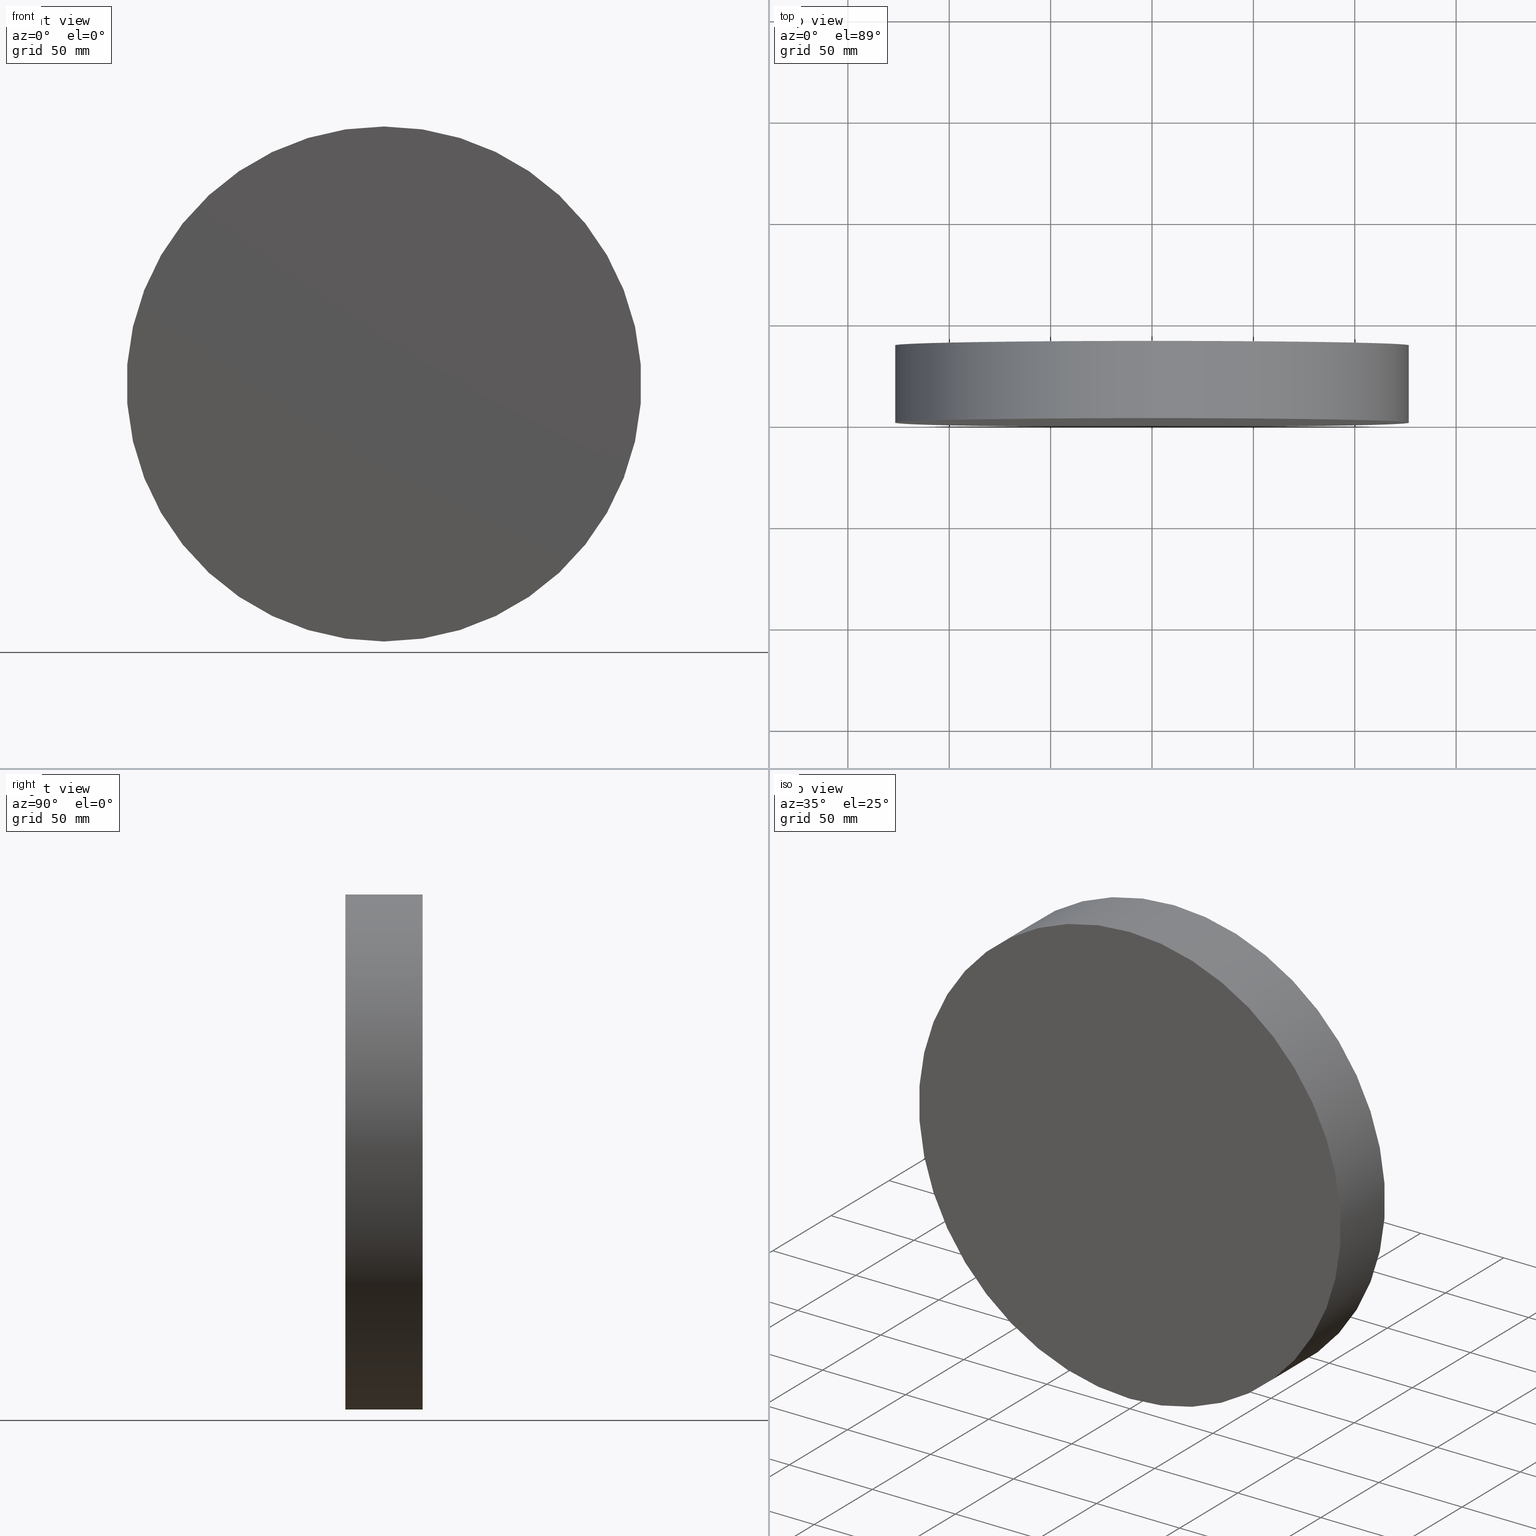
[diagram: canonical four-view strip — front | top / right | iso, engineering-drawing reading convention]
A machine part, canonical four-view strip (front | top / right | iso — engineering-drawing reading convention). The complete STEP part file that produces these views, byte-faithful:
ISO-10303-21;
HEADER;
FILE_DESCRIPTION (( 'STEP AP214' ),
    '1' );
FILE_NAME ('192506.STEP',
    '2019-07-19T05:34:12',
    ( 'user' ),
    ( '΢���й�' ),
    'SwSTEP 2.0',
    'SolidWorks 2016',
    '' );
FILE_SCHEMA (( 'AUTOMOTIVE_DESIGN' ));
ENDSEC;

DATA;
#1 = FACE_OUTER_BOUND ( 'NONE', #119, .T. ) ;
#2 = ADVANCED_FACE ( 'NONE', ( #1 ), #73, .F. ) ;
#3 = EDGE_CURVE ( 'NONE', #114, #130, #80, .T. ) ;
#4 = ORIENTED_EDGE ( 'NONE', *, *, #82, .T. ) ;
#5 = CIRCLE ( 'NONE', #74, 127.0000000000000000 ) ;
#6 = DIRECTION ( 'NONE',  ( 0.0000000000000000000, 1.000000000000000000, 0.0000000000000000000 ) ) ;
#7 = ORIENTED_EDGE ( 'NONE', *, *, #90, .T. ) ;
#8 = PRODUCT ( '192506', '192506', '', ( #44 ) ) ;
#9 = DIRECTION ( 'NONE',  ( 0.0000000000000000000, 1.000000000000000000, 0.0000000000000000000 ) ) ;
#10 = ORIENTED_EDGE ( 'NONE', *, *, #90, .F. ) ;
#11 = CARTESIAN_POINT ( 'NONE',  ( 0.0000000000000000000, 0.0000000000000000000, 0.0000000000000000000 ) ) ;
#12 =( LENGTH_UNIT ( ) NAMED_UNIT ( * ) SI_UNIT ( .MILLI., .METRE. ) );
#13 = EDGE_CURVE ( 'NONE', #23, #105, #86, .T. ) ;
#14 = ADVANCED_BREP_SHAPE_REPRESENTATION ( '192506', ( #35, #83 ), #104 ) ;
#15 = FILL_AREA_STYLE_COLOUR ( '', #66 ) ;
#16 = DIRECTION ( 'NONE',  ( 0.0000000000000000000, 0.0000000000000000000, 1.000000000000000000 ) ) ;
#17 = CARTESIAN_POINT ( 'NONE',  ( 0.0000000000000000000, 0.0000000000000000000, 0.0000000000000000000 ) ) ;
#18 = CARTESIAN_POINT ( 'NONE',  ( 1.555301434917138300E-014, 38.10000000000000100, 127.0000000000000000 ) ) ;
#19 =( LENGTH_UNIT ( ) NAMED_UNIT ( * ) SI_UNIT ( .MILLI., .METRE. ) );
#20 = DIRECTION ( 'NONE',  ( 0.0000000000000000000, 0.0000000000000000000, -1.000000000000000000 ) ) ;
#21 = FILL_AREA_STYLE_COLOUR ( '', #31 ) ;
#22 = PRODUCT_DEFINITION_CONTEXT ( 'detailed design', #126, 'design' ) ;
#23 = VERTEX_POINT ( 'NONE', #54 ) ;
#24 = EDGE_CURVE ( 'NONE', #23, #114, #67, .T. ) ;
#25 = SURFACE_STYLE_FILL_AREA ( #121 ) ;
#26 = VECTOR ( 'NONE', #50, 1000.000000000000000 ) ;
#27 = SURFACE_SIDE_STYLE ('',( #25 ) ) ;
#28 = PRESENTATION_STYLE_ASSIGNMENT (( #133 ) ) ;
#29 = CARTESIAN_POINT ( 'NONE',  ( 0.0000000000000000000, 38.10000000000000100, 0.0000000000000000000 ) ) ;
#30 = FILL_AREA_STYLE ('',( #15 ) ) ;
#31 = COLOUR_RGB ( '',1.000000000000000000, 1.000000000000000000, 1.000000000000000000 ) ;
#32 = LINE ( 'NONE', #40, #26 ) ;
#33 = APPLICATION_PROTOCOL_DEFINITION ( 'draft international standard', 'automotive_design', 1998, #126 ) ;
#34 = AXIS2_PLACEMENT_3D ( 'NONE', #123, #9, #137 ) ;
#35 = MANIFOLD_SOLID_BREP ( '͹̨-����1', #57 ) ;
#36 = EDGE_LOOP ( 'NONE', ( #52, #63 ) ) ;
#37 = CIRCLE ( 'NONE', #87, 127.0000000000000000 ) ;
#38 = DIRECTION ( 'NONE',  ( 0.0000000000000000000, -0.0000000000000000000, 1.000000000000000000 ) ) ;
#39 =( NAMED_UNIT ( * ) PLANE_ANGLE_UNIT ( ) SI_UNIT ( $, .RADIAN. ) );
#40 = CARTESIAN_POINT ( 'NONE',  ( 0.0000000000000000000, 38.10000000000000100, -127.0000000000000000 ) ) ;
#41 = DIRECTION ( 'NONE',  ( 1.000000000000000000, 0.0000000000000000000, 0.0000000000000000000 ) ) ;
#42 = STYLED_ITEM ( 'NONE', ( #28 ), #35 ) ;
#43 = SURFACE_SIDE_STYLE ('',( #135 ) ) ;
#44 = PRODUCT_CONTEXT ( 'NONE', #65, 'mechanical' ) ;
#45 = UNCERTAINTY_MEASURE_WITH_UNIT (LENGTH_MEASURE( 1.000000000000000100E-005 ), #19, 'distance_accuracy_value', 'NONE');
#46 = PRESENTATION_LAYER_ASSIGNMENT (  '', '', ( #42 ) ) ;
#47 = ADVANCED_FACE ( 'NONE', ( #139 ), #81, .T. ) ;
#48 = CYLINDRICAL_SURFACE ( 'NONE', #98, 127.0000000000000000 ) ;
#49 = AXIS2_PLACEMENT_3D ( 'NONE', #17, #97, #95 ) ;
#50 = DIRECTION ( 'NONE',  ( -0.0000000000000000000, -1.000000000000000000, -0.0000000000000000000 ) ) ;
#51 = EDGE_CURVE ( 'NONE', #105, #23, #5, .T. ) ;
#52 = ORIENTED_EDGE ( 'NONE', *, *, #51, .T. ) ;
#53 = MECHANICAL_DESIGN_GEOMETRIC_PRESENTATION_REPRESENTATION (  '', ( #42 ), #60 ) ;
#54 = CARTESIAN_POINT ( 'NONE',  ( 1.555301434917138300E-014, 38.10000000000000100, 127.0000000000000000 ) ) ;
#55 = MECHANICAL_DESIGN_GEOMETRIC_PRESENTATION_REPRESENTATION (  '', ( #122 ), #64 ) ;
#56 = UNCERTAINTY_MEASURE_WITH_UNIT (LENGTH_MEASURE( 1.000000000000000100E-005 ), #12, 'distance_accuracy_value', 'NONE');
#57 = CLOSED_SHELL ( 'NONE', ( #47, #88, #129, #2 ) ) ;
#58 =( NAMED_UNIT ( * ) SI_UNIT ( $, .STERADIAN. ) SOLID_ANGLE_UNIT ( ) );
#59 = DIRECTION ( 'NONE',  ( 0.0000000000000000000, 0.0000000000000000000, -1.000000000000000000 ) ) ;
#60 =( GEOMETRIC_REPRESENTATION_CONTEXT ( 3 ) GLOBAL_UNCERTAINTY_ASSIGNED_CONTEXT ( ( #108 ) ) GLOBAL_UNIT_ASSIGNED_CONTEXT ( ( #77, #39, #134 ) ) REPRESENTATION_CONTEXT ( 'NONE', 'WORKASPACE' ) );
#61 = SURFACE_STYLE_USAGE ( .BOTH. , #43 ) ;
#62 = CARTESIAN_POINT ( 'NONE',  ( 1.555301434917138300E-014, 0.0000000000000000000, 127.0000000000000000 ) ) ;
#63 = ORIENTED_EDGE ( 'NONE', *, *, #13, .T. ) ;
#64 =( GEOMETRIC_REPRESENTATION_CONTEXT ( 3 ) GLOBAL_UNCERTAINTY_ASSIGNED_CONTEXT ( ( #45 ) ) GLOBAL_UNIT_ASSIGNED_CONTEXT ( ( #19, #120, #58 ) ) REPRESENTATION_CONTEXT ( 'NONE', 'WORKASPACE' ) );
#65 = APPLICATION_CONTEXT ( 'automotive_design' ) ;
#66 = COLOUR_RGB ( '',1.000000000000000000, 1.000000000000000000, 1.000000000000000000 ) ;
#67 = LINE ( 'NONE', #18, #140 ) ;
#68 = ORIENTED_EDGE ( 'NONE', *, *, #3, .T. ) ;
#69 = ORIENTED_EDGE ( 'NONE', *, *, #24, .T. ) ;
#70 = DIRECTION ( 'NONE',  ( 0.0000000000000000000, 1.000000000000000000, 0.0000000000000000000 ) ) ;
#71 = DIRECTION ( 'NONE',  ( 0.0000000000000000000, 0.0000000000000000000, 1.000000000000000000 ) ) ;
#72 = ORIENTED_EDGE ( 'NONE', *, *, #24, .F. ) ;
#73 = PLANE ( 'NONE',  #113 ) ;
#74 = AXIS2_PLACEMENT_3D ( 'NONE', #29, #94, #16 ) ;
#75 = CARTESIAN_POINT ( 'NONE',  ( 0.0000000000000000000, 38.10000000000000100, -127.0000000000000000 ) ) ;
#76 = ORIENTED_EDGE ( 'NONE', *, *, #3, .F. ) ;
#77 =( LENGTH_UNIT ( ) NAMED_UNIT ( * ) SI_UNIT ( .MILLI., .METRE. ) );
#78 = AXIS2_PLACEMENT_3D ( 'NONE', #85, #102, #20 ) ;
#79 = DIRECTION ( 'NONE',  ( -0.0000000000000000000, -1.000000000000000000, -0.0000000000000000000 ) ) ;
#80 = CIRCLE ( 'NONE', #49, 127.0000000000000000 ) ;
#81 = CYLINDRICAL_SURFACE ( 'NONE', #78, 127.0000000000000000 ) ;
#82 = EDGE_CURVE ( 'NONE', #105, #130, #32, .T. ) ;
#83 = AXIS2_PLACEMENT_3D ( 'NONE', #125, #71, #41 ) ;
#84 = CARTESIAN_POINT ( 'NONE',  ( 0.0000000000000000000, 0.0000000000000000000, -127.0000000000000000 ) ) ;
#85 = CARTESIAN_POINT ( 'NONE',  ( 0.0000000000000000000, 38.10000000000000100, 0.0000000000000000000 ) ) ;
#86 = CIRCLE ( 'NONE', #34, 127.0000000000000000 ) ;
#87 = AXIS2_PLACEMENT_3D ( 'NONE', #11, #70, #109 ) ;
#88 = ADVANCED_FACE ( 'NONE', ( #132 ), #48, .T. ) ;
#89 = DIRECTION ( 'NONE',  ( 0.0000000000000000000, 1.000000000000000000, 0.0000000000000000000 ) ) ;
#90 = EDGE_CURVE ( 'NONE', #130, #114, #37, .T. ) ;
#91 = CARTESIAN_POINT ( 'NONE',  ( 0.0000000000000000000, 38.10000000000000100, 0.0000000000000000000 ) ) ;
#92 = PRODUCT_DEFINITION ( 'δ֪', '', #100, #22 ) ;
#93 = DIRECTION ( 'NONE',  ( 0.0000000000000000000, -0.0000000000000000000, 1.000000000000000000 ) ) ;
#94 = DIRECTION ( 'NONE',  ( 0.0000000000000000000, 1.000000000000000000, 0.0000000000000000000 ) ) ;
#95 = DIRECTION ( 'NONE',  ( 0.0000000000000000000, 0.0000000000000000000, 1.000000000000000000 ) ) ;
#96 = ORIENTED_EDGE ( 'NONE', *, *, #51, .F. ) ;
#97 = DIRECTION ( 'NONE',  ( 0.0000000000000000000, 1.000000000000000000, 0.0000000000000000000 ) ) ;
#98 = AXIS2_PLACEMENT_3D ( 'NONE', #124, #79, #59 ) ;
#99 = EDGE_LOOP ( 'NONE', ( #72, #96, #4, #7 ) ) ;
#100 = PRODUCT_DEFINITION_FORMATION_WITH_SPECIFIED_SOURCE ( '�κ�', '', #8, .NOT_KNOWN. ) ;
#101 = ORIENTED_EDGE ( 'NONE', *, *, #13, .F. ) ;
#102 = DIRECTION ( 'NONE',  ( -0.0000000000000000000, -1.000000000000000000, -0.0000000000000000000 ) ) ;
#103 =( NAMED_UNIT ( * ) PLANE_ANGLE_UNIT ( ) SI_UNIT ( $, .RADIAN. ) );
#104 =( GEOMETRIC_REPRESENTATION_CONTEXT ( 3 ) GLOBAL_UNCERTAINTY_ASSIGNED_CONTEXT ( ( #56 ) ) GLOBAL_UNIT_ASSIGNED_CONTEXT ( ( #12, #103, #131 ) ) REPRESENTATION_CONTEXT ( 'NONE', 'WORKASPACE' ) );
#105 = VERTEX_POINT ( 'NONE', #75 ) ;
#106 = APPLICATION_PROTOCOL_DEFINITION ( 'draft international standard', 'automotive_design', 1998, #65 ) ;
#107 = PRODUCT_RELATED_PRODUCT_CATEGORY ( 'part', '', ( #8 ) ) ;
#108 = UNCERTAINTY_MEASURE_WITH_UNIT (LENGTH_MEASURE( 1.000000000000000100E-005 ), #77, 'distance_accuracy_value', 'NONE');
#109 = DIRECTION ( 'NONE',  ( 0.0000000000000000000, 0.0000000000000000000, 1.000000000000000000 ) ) ;
#110 = FACE_OUTER_BOUND ( 'NONE', #36, .T. ) ;
#111 = AXIS2_PLACEMENT_3D ( 'NONE', #91, #6, #93 ) ;
#112 = PRODUCT_DEFINITION_SHAPE ( 'NONE', 'NONE',  #92 ) ;
#113 = AXIS2_PLACEMENT_3D ( 'NONE', #138, #89, #38 ) ;
#114 = VERTEX_POINT ( 'NONE', #62 ) ;
#115 = PLANE ( 'NONE',  #111 ) ;
#116 = EDGE_LOOP ( 'NONE', ( #101, #69, #68, #127 ) ) ;
#117 = SHAPE_DEFINITION_REPRESENTATION ( #112, #14 ) ;
#118 = DIRECTION ( 'NONE',  ( -0.0000000000000000000, -1.000000000000000000, -0.0000000000000000000 ) ) ;
#119 = EDGE_LOOP ( 'NONE', ( #10, #76 ) ) ;
#120 =( NAMED_UNIT ( * ) PLANE_ANGLE_UNIT ( ) SI_UNIT ( $, .RADIAN. ) );
#121 = FILL_AREA_STYLE ('',( #21 ) ) ;
#122 = STYLED_ITEM ( 'NONE', ( #136 ), #14 ) ;
#123 = CARTESIAN_POINT ( 'NONE',  ( 0.0000000000000000000, 38.10000000000000100, 0.0000000000000000000 ) ) ;
#124 = CARTESIAN_POINT ( 'NONE',  ( 0.0000000000000000000, 38.10000000000000100, 0.0000000000000000000 ) ) ;
#125 = CARTESIAN_POINT ( 'NONE',  ( 0.0000000000000000000, 0.0000000000000000000, 0.0000000000000000000 ) ) ;
#126 = APPLICATION_CONTEXT ( 'automotive_design' ) ;
#127 = ORIENTED_EDGE ( 'NONE', *, *, #82, .F. ) ;
#128 = PRESENTATION_LAYER_ASSIGNMENT (  '', '', ( #122 ) ) ;
#129 = ADVANCED_FACE ( 'NONE', ( #110 ), #115, .T. ) ;
#130 = VERTEX_POINT ( 'NONE', #84 ) ;
#131 =( NAMED_UNIT ( * ) SI_UNIT ( $, .STERADIAN. ) SOLID_ANGLE_UNIT ( ) );
#132 = FACE_OUTER_BOUND ( 'NONE', #99, .T. ) ;
#133 = SURFACE_STYLE_USAGE ( .BOTH. , #27 ) ;
#134 =( NAMED_UNIT ( * ) SI_UNIT ( $, .STERADIAN. ) SOLID_ANGLE_UNIT ( ) );
#135 = SURFACE_STYLE_FILL_AREA ( #30 ) ;
#136 = PRESENTATION_STYLE_ASSIGNMENT (( #61 ) ) ;
#137 = DIRECTION ( 'NONE',  ( 0.0000000000000000000, 0.0000000000000000000, 1.000000000000000000 ) ) ;
#138 = CARTESIAN_POINT ( 'NONE',  ( 0.0000000000000000000, 0.0000000000000000000, 0.0000000000000000000 ) ) ;
#139 = FACE_OUTER_BOUND ( 'NONE', #116, .T. ) ;
#140 = VECTOR ( 'NONE', #118, 1000.000000000000000 ) ;
ENDSEC;
END-ISO-10303-21;
